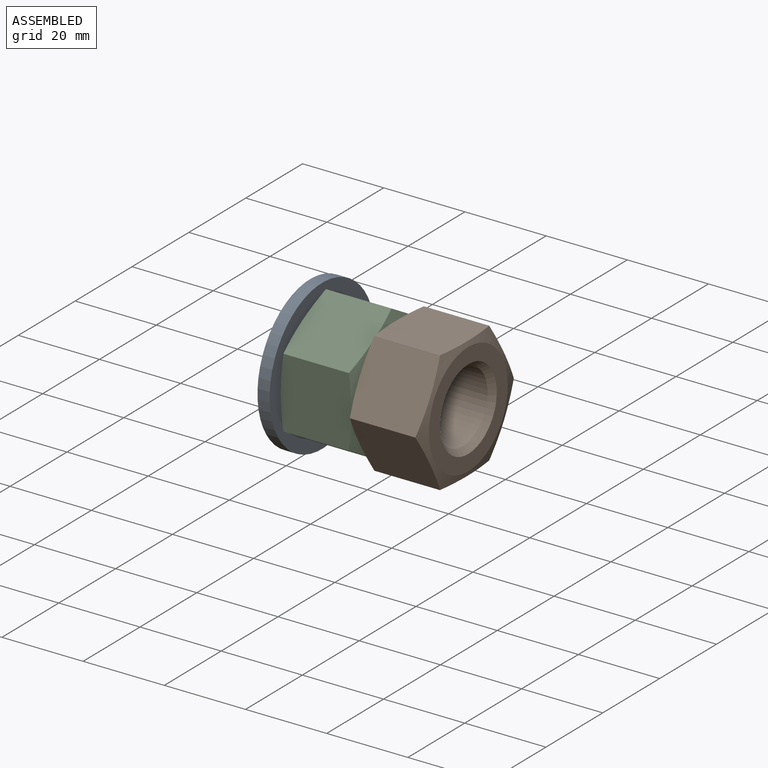
[diagram: assembled view]
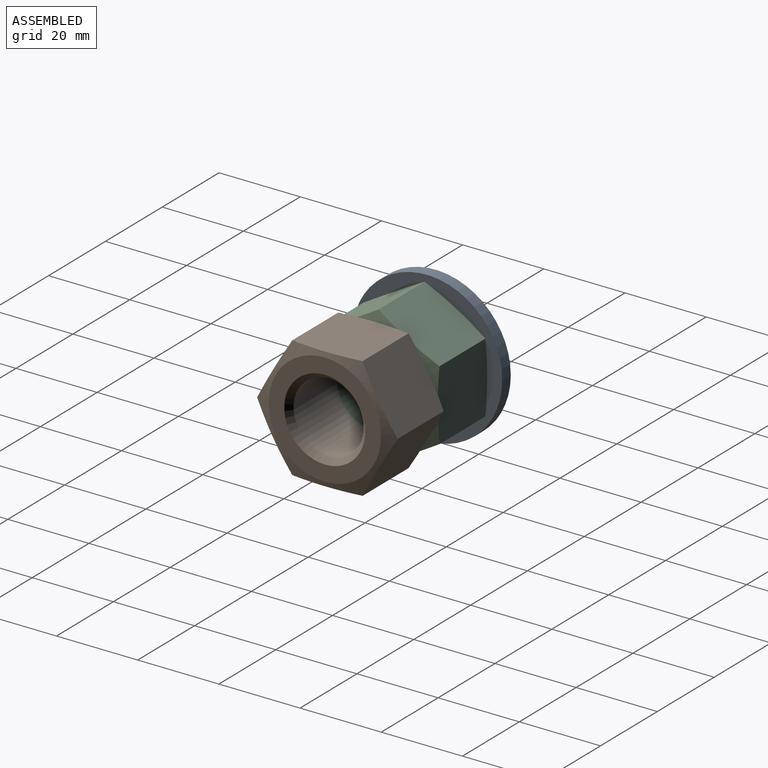
[diagram: assembled view, second angle]
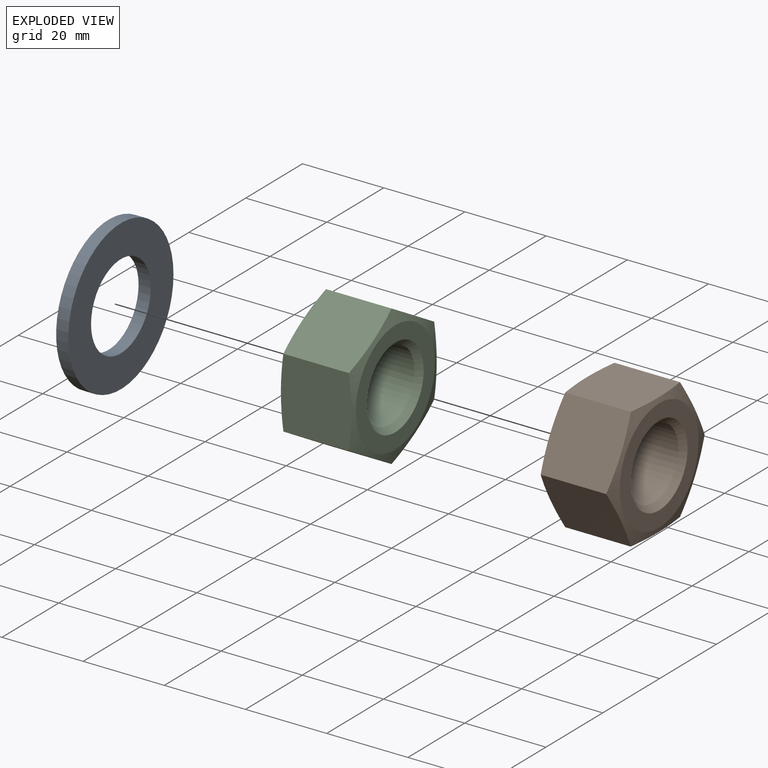
[diagram: exploded view]
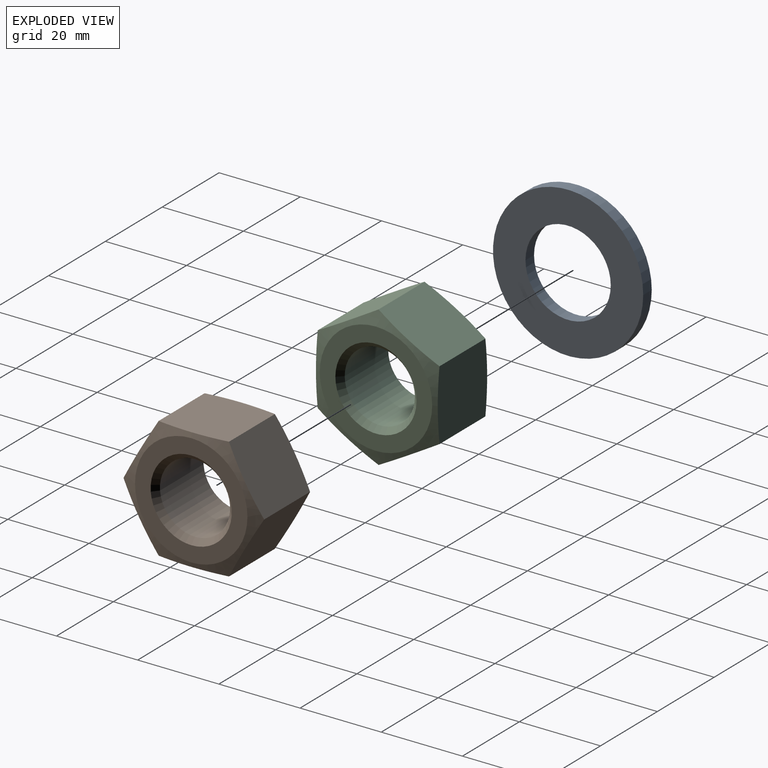
[diagram: exploded view, second angle]
ASSEMBLY  parts=3 mates=2
PART A: 4 faces, bbox 3x37x37 mm
  f0: plane 37x37mm, normal (-1,0,0), area 728.8mm2, adj f1,f3
  f1: cylinder r=10.5mm len=21mm, axis (1,0,0), area 197.9mm2, adj f0,f2
  f2: plane 37x37mm, normal (1,0,0), area 728.8mm2, adj f1,f3
  f3: cylinder r=18.5mm len=37mm, axis (1,0,0), area 348.7mm2, adj f0,f2
PART B: 13 faces, bbox 18x34.6x34.6 mm
  f0: plane 27.7x27.7mm, normal (1,0,0), area 288.5mm2, adj f1,f6
  f1: cone r=18mm half-angle=75deg, axis (-1,0,0), area 183mm2, adj f0,f7,f8,f9,f10,f11,f12
  f2: cone r=13.85mm half-angle=75deg, axis (1,0,0), area 183mm2, adj f3,f7,f8,f9,f10,f11,f12
  f3: plane 27.7x27.7mm, normal (-1,0,0), area 288.5mm2, adj f2,f4
  f4: cone r=10mm half-angle=45deg, axis (-1,0,0), area 112.1mm2, adj f3,f5
  f5: cylinder r=8.65mm len=17.29mm, axis (1,0,0), area 830.9mm2, adj f4,f6
  f6: cone r=8.65mm half-angle=45deg, axis (1,0,0), area 112.1mm2, adj f0,f5
  f7: plane 17.38x15mm, normal (0,0.87,0.5), area 293.7mm2, adj f1,f2,f8,f12
  f8: plane 17.38x15mm, normal (0,0.87,-0.5), area 293.7mm2, adj f1,f2,f7,f9
  f9: plane 17.39x17.32mm, normal (0,0,-1), area 293.7mm2, adj f1,f2,f8,f10
  f10: plane 17.38x15mm, normal (0,-0.87,-0.5), area 293.7mm2, adj f1,f2,f9,f11
  f11: plane 17.38x15mm, normal (0,-0.87,0.5), area 293.7mm2, adj f1,f2,f10,f12
  f12: plane 17.39x17.32mm, normal (0,0,1), area 293.7mm2, adj f1,f2,f7,f11
PART C: same geometry as B
PLACE A t=(1759.54,1389.06,-371.98)mm
PLACE B rot(axis=(0,0,1),180deg) t=(1798.54,1389.06,-371.98)mm
PLACE C rot(axis=(1,0,0),90deg) t=(1762.54,1389.06,-371.98)mm
MATE fastened C.f1 <-> A.f1  axis (-1,0,0) through (1762.54,1389.06,-371.98)mm
MATE fastened C.f1 <-> B.f1  axis (1,0,0) through (1780.54,1389.06,-371.98)mm
